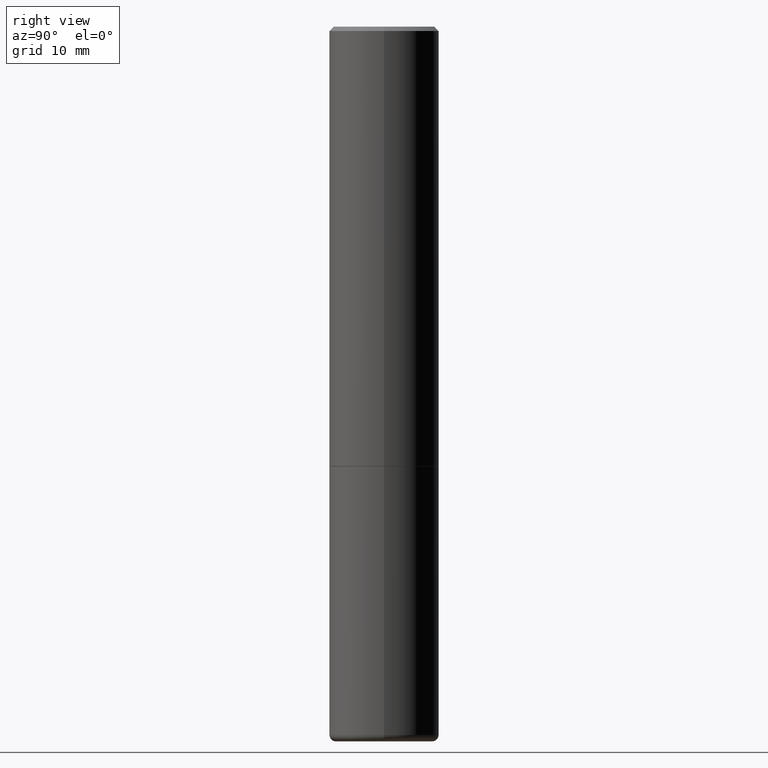
[diagram: clean part render]
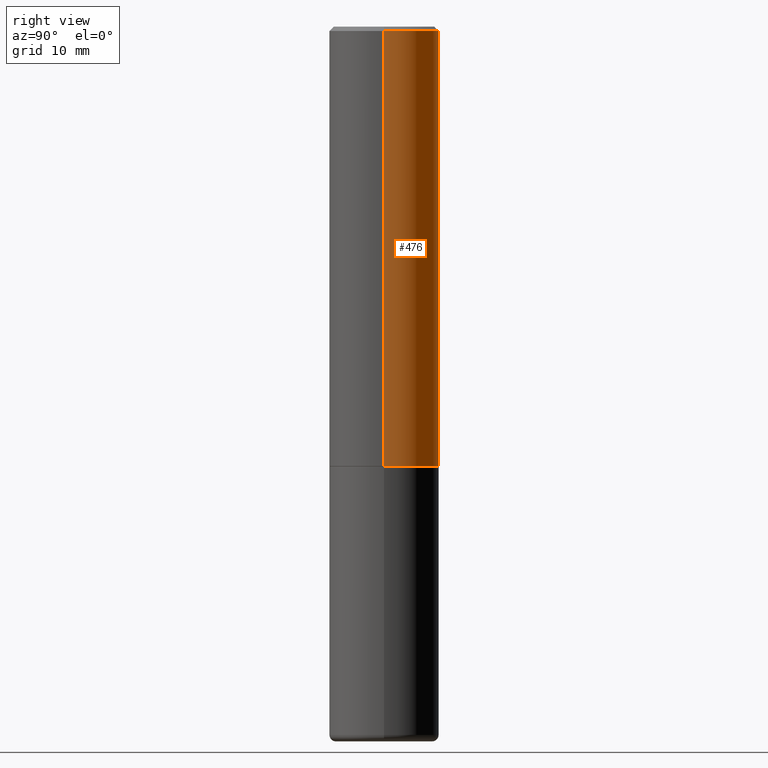
[diagram: same view with one face highlighted and labeled with its STEP entity id]
A machine part, right view. The second image highlights one B-rep face of the part: STEP entity #476.
In plain terms, the highlighted cylindrical surface (partial cylindrical patch) has radius 6.35 mm, axis along (-0, 0, 1).
Its self-contained STEP definition (entity closure, byte-faithful):
#3 = DIRECTION ( 'NONE',  ( -2.445468806185136877E-29, 3.491481338843145188E-15, 1.000000000000000000 ) ) ;
#11 = LINE ( 'NONE', #347, #69 ) ;
#15 = VERTEX_POINT ( 'NONE', #160 ) ;
#24 = VECTOR ( 'NONE', #369, 39.37007874015748143 ) ;
#29 = AXIS2_PLACEMENT_3D ( 'NONE', #41, #326, #473 ) ;
#34 = EDGE_CURVE ( 'NONE', #317, #15, #48, .T. ) ;
#41 = CARTESIAN_POINT ( 'NONE',  ( 4.888492143564087591E-29, -6.979471196347447369E-15, -1.998999999999999888 ) ) ;
#42 = CARTESIAN_POINT ( 'NONE',  ( 0.2499999999999994449, -1.745740669421562733E-15, 1.219044193948981146E-29 ) ) ;
#48 = CIRCLE ( 'NONE', #354, 0.2499999999999993894 ) ;
#52 = ORIENTED_EDGE ( 'NONE', *, *, #210, .F. ) ;
#56 = DIRECTION ( 'NONE',  ( 1.000000000000000000, -6.982962677686266711E-15, 0.000000000000000000 ) ) ;
#68 = DIRECTION ( 'NONE',  ( 1.000000000000000000, -6.982962677686266711E-15, 4.876176775795935232E-29 ) ) ;
#69 = VECTOR ( 'NONE', #3, 39.37007874015748143 ) ;
#70 = CIRCLE ( 'NONE', #29, 0.2499999999999995559 ) ;
#93 = ORIENTED_EDGE ( 'NONE', *, *, #95, .T. ) ;
#95 = EDGE_CURVE ( 'NONE', #224, #373, #70, .T. ) ;
#147 = CARTESIAN_POINT ( 'NONE',  ( 0.000000000000000000, 0.000000000000000000, 0.000000000000000000 ) ) ;
#160 = CARTESIAN_POINT ( 'NONE',  ( -0.2499999999999993894, 1.675911042644699041E-15, -0.02000000000000013226 ) ) ;
#176 = CYLINDRICAL_SURFACE ( 'NONE', #482, 0.2499999999999994449 ) ;
#179 = FACE_OUTER_BOUND ( 'NONE', #280, .T. ) ;
#210 = EDGE_CURVE ( 'NONE', #224, #317, #480, .T. ) ;
#224 = VERTEX_POINT ( 'NONE', #331 ) ;
#268 = ORIENTED_EDGE ( 'NONE', *, *, #415, .T. ) ;
#279 = CARTESIAN_POINT ( 'NONE',  ( -0.2499999999999995559, -1.748293572161906447E-15, -1.998999999999999888 ) ) ;
#280 = EDGE_LOOP ( 'NONE', ( #93, #268, #380, #52 ) ) ;
#299 = DIRECTION ( 'NONE',  ( -2.445468806185136597E-29, 3.491481338843145583E-15, 1.000000000000000000 ) ) ;
#305 = CARTESIAN_POINT ( 'NONE',  ( 0.2499999999999993894, -1.784954126219741850E-15, -0.02000000000000013226 ) ) ;
#317 = VERTEX_POINT ( 'NONE', #305 ) ;
#326 = DIRECTION ( 'NONE',  ( -2.445468806185136597E-29, 3.491481338843145583E-15, 1.000000000000000000 ) ) ;
#331 = CARTESIAN_POINT ( 'NONE',  ( 0.2499999999999995559, -8.725211865769010891E-15, -1.998999999999999888 ) ) ;
#347 = CARTESIAN_POINT ( 'NONE',  ( -0.2499999999999994449, 1.776356839400246520E-15, -1.229733772563723783E-29 ) ) ;
#354 = AXIS2_PLACEMENT_3D ( 'NONE', #466, #400, #56 ) ;
#369 = DIRECTION ( 'NONE',  ( -2.445468806185136877E-29, 3.491481338843145188E-15, 1.000000000000000000 ) ) ;
#373 = VERTEX_POINT ( 'NONE', #279 ) ;
#380 = ORIENTED_EDGE ( 'NONE', *, *, #34, .F. ) ;
#400 = DIRECTION ( 'NONE',  ( -2.445468806185136597E-29, 3.491481338843145583E-15, 1.000000000000000000 ) ) ;
#415 = EDGE_CURVE ( 'NONE', #373, #15, #11, .T. ) ;
#466 = CARTESIAN_POINT ( 'NONE',  ( 4.890937612370304688E-31, -6.982962677686337215E-17, -0.02000000000000013226 ) ) ;
#473 = DIRECTION ( 'NONE',  ( 1.000000000000000000, -6.982962677686267499E-15, 0.000000000000000000 ) ) ;
#476 = ADVANCED_FACE ( 'NONE', ( #179 ), #176, .T. ) ;
#480 = LINE ( 'NONE', #42, #24 ) ;
#482 = AXIS2_PLACEMENT_3D ( 'NONE', #147, #299, #68 ) ;